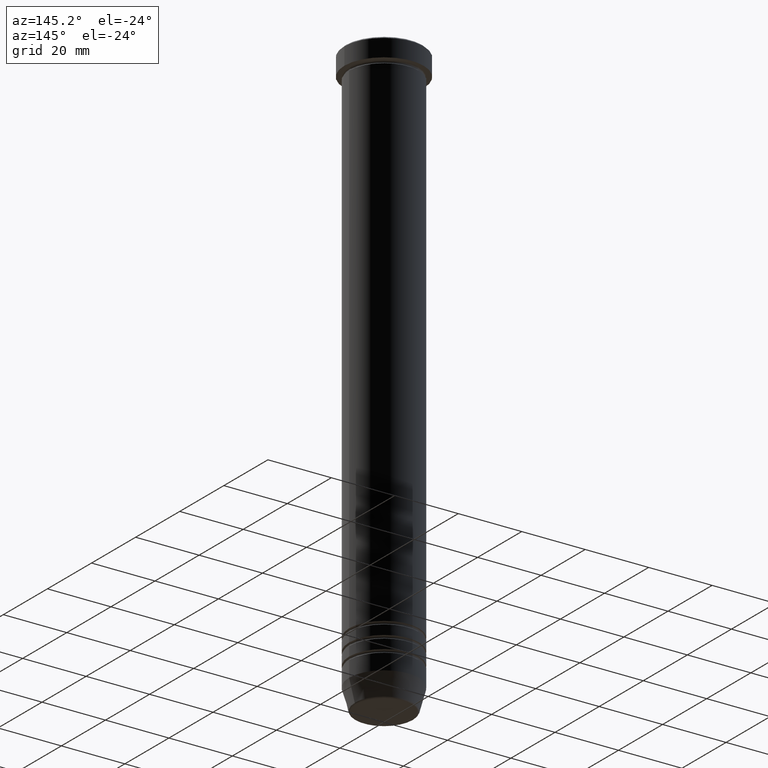
[diagram: clean part render]
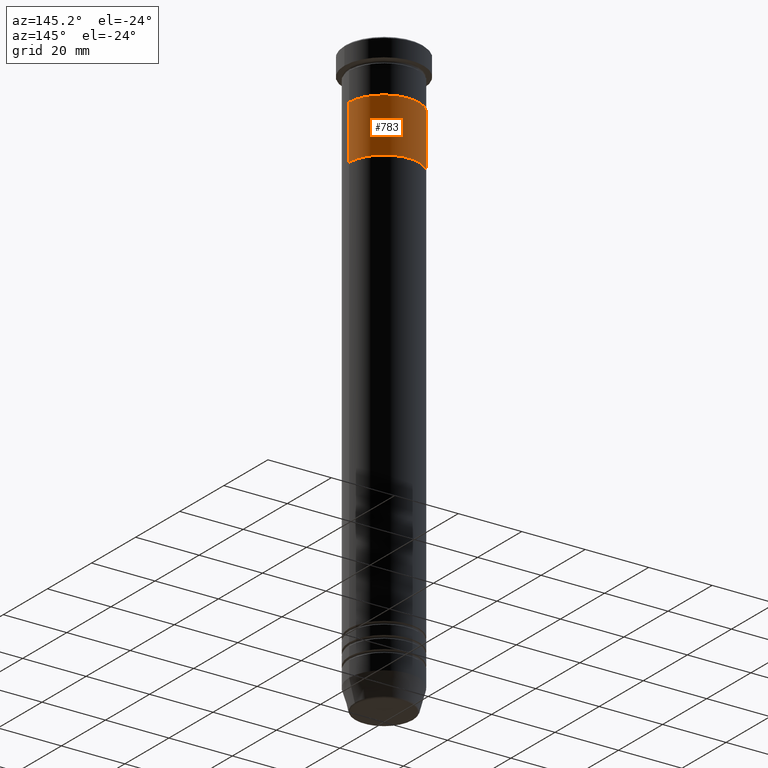
[diagram: same view with one face highlighted and labeled with its STEP entity id]
A machine part, auxiliary view. The second image highlights one B-rep face of the part: STEP entity #783.
In plain terms, the highlighted cylindrical surface (partial cylindrical patch) has radius 11 mm, axis along (-0, -0, 1).
Its self-contained STEP definition (entity closure, byte-faithful):
#18 = DIRECTION ( 'NONE',  ( 1.000000000000000000, 0.000000000000000000, 0.000000000000000000 ) ) ;
#48 = CIRCLE ( 'NONE', #775, 11.00000000000000000 ) ;
#54 = DIRECTION ( 'NONE',  ( -0.000000000000000000, -0.000000000000000000, 1.000000000000000000 ) ) ;
#108 = CARTESIAN_POINT ( 'NONE',  ( 11.00000000000000000, 0.000000000000000000, -33.00000000000000000 ) ) ;
#138 = EDGE_CURVE ( 'NONE', #812, #1071, #1027, .T. ) ;
#145 = AXIS2_PLACEMENT_3D ( 'NONE', #210, #563, #18 ) ;
#151 = EDGE_CURVE ( 'NONE', #173, #993, #48, .T. ) ;
#173 = VERTEX_POINT ( 'NONE', #1135 ) ;
#210 = CARTESIAN_POINT ( 'NONE',  ( 0.000000000000000000, 0.000000000000000000, -33.00000000000000000 ) ) ;
#216 = ORIENTED_EDGE ( 'NONE', *, *, #231, .T. ) ;
#231 = EDGE_CURVE ( 'NONE', #812, #173, #638, .T. ) ;
#328 = DIRECTION ( 'NONE',  ( 0.000000000000000000, 0.000000000000000000, -1.000000000000000000 ) ) ;
#382 = ORIENTED_EDGE ( 'NONE', *, *, #138, .F. ) ;
#410 = ORIENTED_EDGE ( 'NONE', *, *, #151, .T. ) ;
#424 = DIRECTION ( 'NONE',  ( -1.000000000000000000, 0.000000000000000000, 0.000000000000000000 ) ) ;
#454 = CARTESIAN_POINT ( 'NONE',  ( -11.00000000000000000, 1.347111479062088405E-15, -33.00000000000000000 ) ) ;
#496 = DIRECTION ( 'NONE',  ( 0.000000000000000000, 0.000000000000000000, -1.000000000000000000 ) ) ;
#505 = CARTESIAN_POINT ( 'NONE',  ( 0.000000000000000000, 0.000000000000000000, -33.00000000000000000 ) ) ;
#533 = DIRECTION ( 'NONE',  ( -0.000000000000000000, -0.000000000000000000, 1.000000000000000000 ) ) ;
#557 = CARTESIAN_POINT ( 'NONE',  ( -11.00000000000000000, 1.347111479062088405E-15, -33.00000000000000000 ) ) ;
#563 = DIRECTION ( 'NONE',  ( -0.000000000000000000, -0.000000000000000000, 1.000000000000000000 ) ) ;
#638 = LINE ( 'NONE', #557, #1062 ) ;
#651 = CARTESIAN_POINT ( 'NONE',  ( 11.00000000000000000, 0.000000000000000000, -16.00000000000000000 ) ) ;
#685 = LINE ( 'NONE', #740, #1086 ) ;
#708 = EDGE_LOOP ( 'NONE', ( #382, #216, #410, #753 ) ) ;
#740 = CARTESIAN_POINT ( 'NONE',  ( 11.00000000000000000, 0.000000000000000000, -33.00000000000000000 ) ) ;
#753 = ORIENTED_EDGE ( 'NONE', *, *, #856, .F. ) ;
#775 = AXIS2_PLACEMENT_3D ( 'NONE', #933, #328, #424 ) ;
#783 = ADVANCED_FACE ( 'NONE', ( #797 ), #976, .T. ) ;
#797 = FACE_OUTER_BOUND ( 'NONE', #708, .T. ) ;
#812 = VERTEX_POINT ( 'NONE', #454 ) ;
#856 = EDGE_CURVE ( 'NONE', #1071, #993, #685, .T. ) ;
#859 = DIRECTION ( 'NONE',  ( -1.000000000000000000, 0.000000000000000000, 0.000000000000000000 ) ) ;
#933 = CARTESIAN_POINT ( 'NONE',  ( 0.000000000000000000, 0.000000000000000000, -16.00000000000000000 ) ) ;
#976 = CYLINDRICAL_SURFACE ( 'NONE', #145, 11.00000000000000000 ) ;
#993 = VERTEX_POINT ( 'NONE', #651 ) ;
#1027 = CIRCLE ( 'NONE', #1084, 11.00000000000000000 ) ;
#1062 = VECTOR ( 'NONE', #533, 1000.000000000000000 ) ;
#1071 = VERTEX_POINT ( 'NONE', #108 ) ;
#1084 = AXIS2_PLACEMENT_3D ( 'NONE', #505, #496, #859 ) ;
#1086 = VECTOR ( 'NONE', #54, 1000.000000000000000 ) ;
#1135 = CARTESIAN_POINT ( 'NONE',  ( -11.00000000000000000, 1.347111479062088405E-15, -16.00000000000000000 ) ) ;